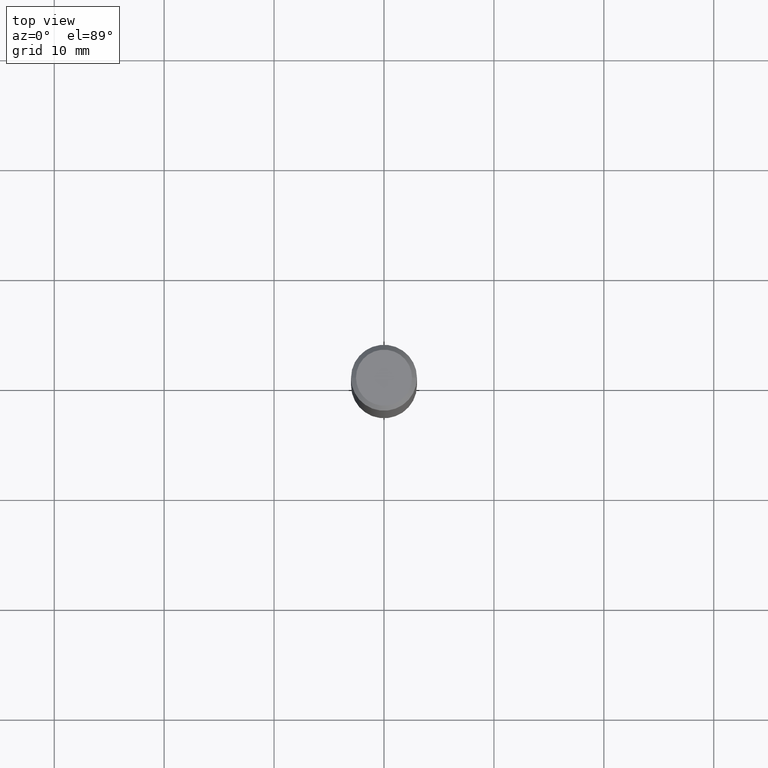
[diagram: clean part render]
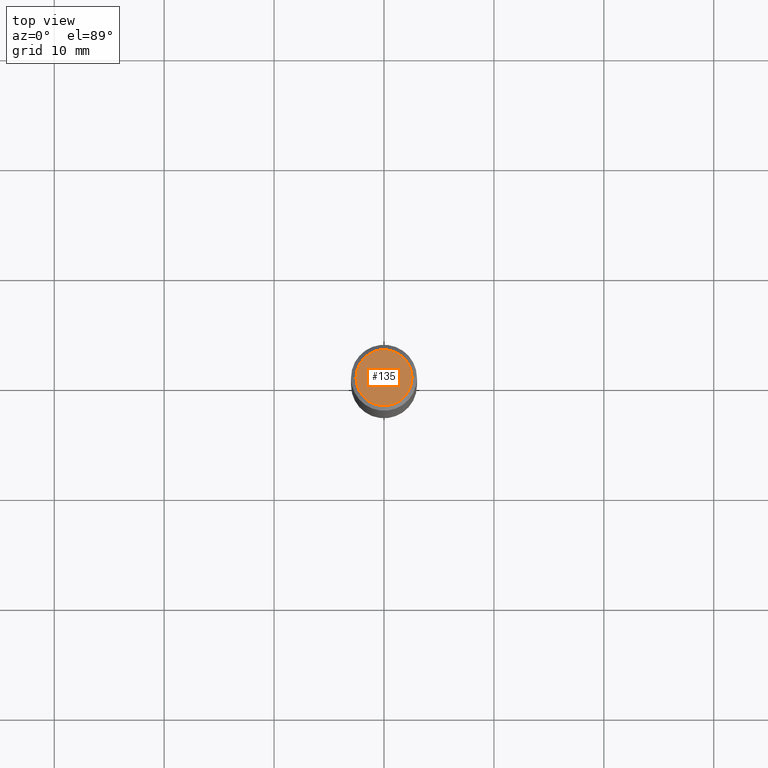
[diagram: same view with one face highlighted and labeled with its STEP entity id]
A machine part, top view. The second image highlights one B-rep face of the part: STEP entity #135.
In plain terms, the highlighted planar face has unit normal (0, -0, -1).
Its self-contained STEP definition (entity closure, byte-faithful):
#20 = AXIS2_PLACEMENT_3D ( 'NONE', #31, #148, #373 ) ;
#23 = ORIENTED_EDGE ( 'NONE', *, *, #116, .T. ) ;
#31 = CARTESIAN_POINT ( 'NONE',  ( 7.015701749847187307E-46, -1.001656274515824970E-31, -2.868857591682589212E-17 ) ) ;
#98 = AXIS2_PLACEMENT_3D ( 'NONE', #487, #146, #445 ) ;
#116 = EDGE_CURVE ( 'NONE', #351, #436, #157, .T. ) ;
#135 = ADVANCED_FACE ( 'NONE', ( #185 ), #334, .F. ) ;
#143 = CARTESIAN_POINT ( 'NONE',  ( 7.015701749847187307E-46, -1.001656274515824970E-31, -2.868857591682589212E-17 ) ) ;
#146 = DIRECTION ( 'NONE',  ( 2.438088387897960049E-29, -3.491481338843145188E-15, -1.000000000000000000 ) ) ;
#148 = DIRECTION ( 'NONE',  ( -2.445468806185136597E-29, 3.491481338843145583E-15, 1.000000000000000000 ) ) ;
#157 = CIRCLE ( 'NONE', #20, 0.1003850000000000159 ) ;
#184 = EDGE_CURVE ( 'NONE', #436, #351, #408, .T. ) ;
#185 = FACE_OUTER_BOUND ( 'NONE', #416, .T. ) ;
#227 = CARTESIAN_POINT ( 'NONE',  ( 0.1003850000000000159, -7.803837484803599345E-16, -2.868857591682071522E-17 ) ) ;
#238 = CARTESIAN_POINT ( 'NONE',  ( -0.1003850000000000159, 7.319105043583386689E-16, -2.868857591683090262E-17 ) ) ;
#268 = AXIS2_PLACEMENT_3D ( 'NONE', #143, #294, #443 ) ;
#294 = DIRECTION ( 'NONE',  ( -2.445468806185136597E-29, 3.491481338843145583E-15, 1.000000000000000000 ) ) ;
#317 = ORIENTED_EDGE ( 'NONE', *, *, #184, .T. ) ;
#334 = PLANE ( 'NONE',  #98 ) ;
#351 = VERTEX_POINT ( 'NONE', #238 ) ;
#373 = DIRECTION ( 'NONE',  ( 1.000000000000000000, -6.982962677686266711E-15, 4.875668750515085695E-29 ) ) ;
#408 = CIRCLE ( 'NONE', #268, 0.1003850000000000159 ) ;
#416 = EDGE_LOOP ( 'NONE', ( #23, #317 ) ) ;
#436 = VERTEX_POINT ( 'NONE', #227 ) ;
#443 = DIRECTION ( 'NONE',  ( 1.000000000000000000, -6.982962677686266711E-15, 4.875668750515085695E-29 ) ) ;
#445 = DIRECTION ( 'NONE',  ( -1.000000000000000000, 6.982962677686265922E-15, -4.876176775795935793E-29 ) ) ;
#487 = CARTESIAN_POINT ( 'NONE',  ( 3.507850874923593654E-46, -5.008281372579124849E-32, -1.434428795841294606E-17 ) ) ;